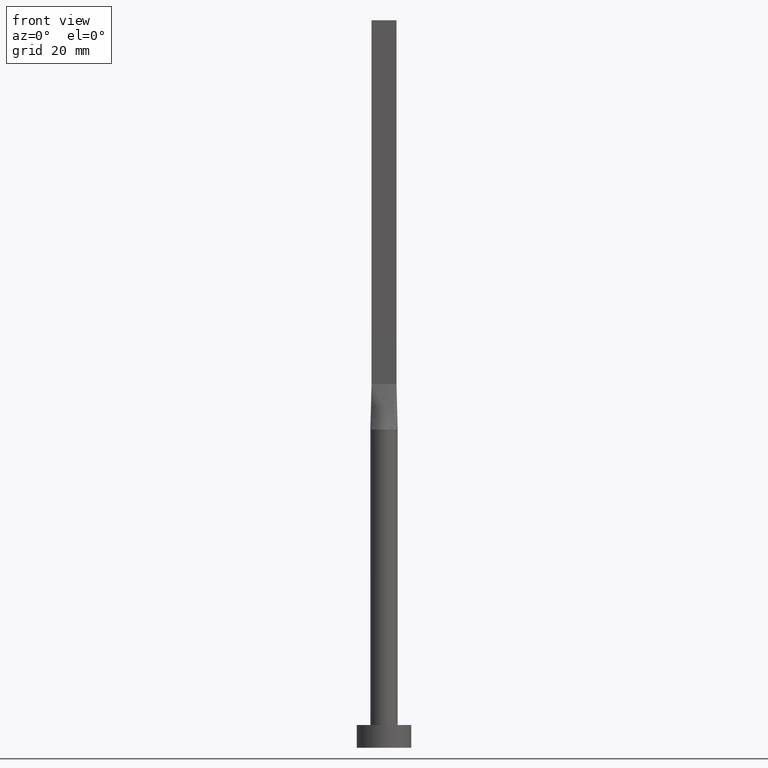
[diagram: clean part render]
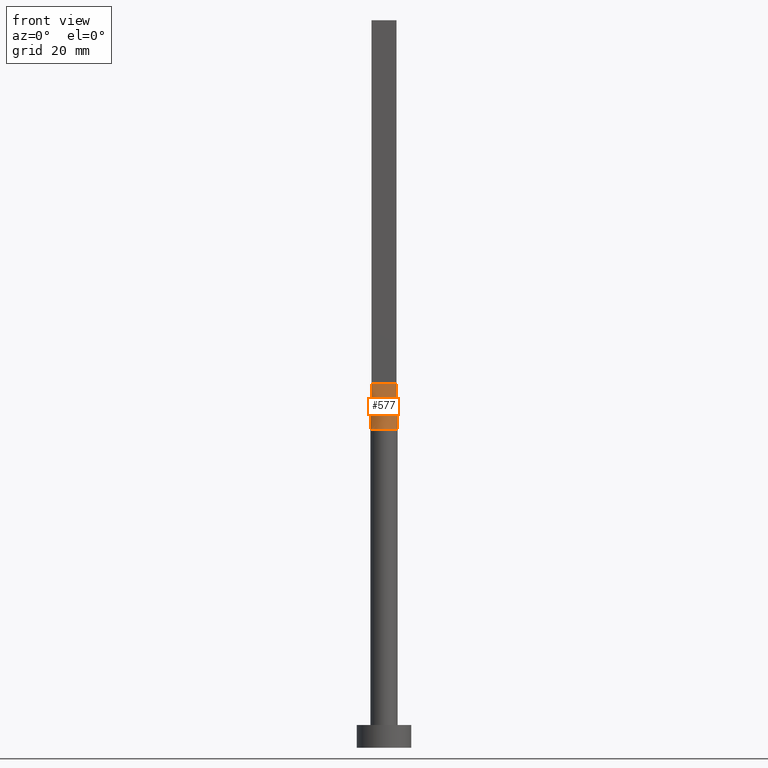
[diagram: same view with one face highlighted and labeled with its STEP entity id]
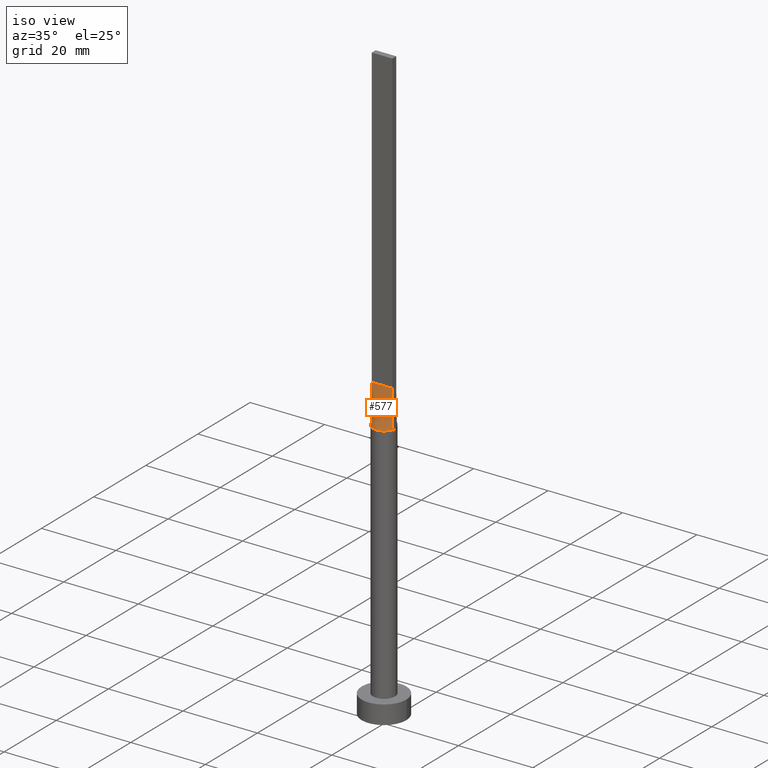
[diagram: same view with one face highlighted and labeled with its STEP entity id]
A machine part, front view. The second image highlights one B-rep face of the part: STEP entity #577.
A second angle (iso view) of the same face is appended — the face is thin or edge-on in the first view.
In plain terms, the highlighted face is a freeform B-spline surface patch.
Its self-contained STEP definition (entity closure, byte-faithful):
#4 = CARTESIAN_POINT ( 'NONE',  ( -2.442412046818594806, -1.765588549521968975, 69.99999999999998579 ) ) ;
#6 = CARTESIAN_POINT ( 'NONE',  ( -1.604166666666669183, -0.7499999999999995559, 79.99999999999998579 ) ) ;
#15 = CARTESIAN_POINT ( 'NONE',  ( 2.894291463713196677, -0.7893522173763275473, 70.00000000000000000 ) ) ;
#27 = CARTESIAN_POINT ( 'NONE',  ( -1.833333333333335258, -0.7499999999999995559, 79.99999999999998579 ) ) ;
#46 = CARTESIAN_POINT ( 'NONE',  ( 0.2291666666666632990, -0.7499999999999995559, 79.99999999999998579 ) ) ;
#47 = CARTESIAN_POINT ( 'NONE',  ( 0.4583333333333300397, -0.7499999999999995559, 79.99999999999998579 ) ) ;
#48 = CARTESIAN_POINT ( 'NONE',  ( -2.894489875237701959, -0.7894071376467488577, 70.00000000000000000 ) ) ;
#54 = DIRECTION ( 'NONE',  ( -0.01442753284129405511, -0.003934781683989273249, -0.9998881756422629552 ) ) ;
#58 = CIRCLE ( 'NONE', #347, 3.000000000000000444 ) ;
#71 = CARTESIAN_POINT ( 'NONE',  ( 2.894514141151844910, -0.7894138151126538494, 70.00000000000000000 ) ) ;
#81 = CARTESIAN_POINT ( 'NONE',  ( 2.830829925251657997, -1.022044525068636078, 70.00000000000001421 ) ) ;
#87 = CARTESIAN_POINT ( 'NONE',  ( 2.442412046818594362, -1.765588549521970751, 70.00000000000001421 ) ) ;
#92 = CARTESIAN_POINT ( 'NONE',  ( 2.291666666666665630, -0.7499999999999997780, 79.99999999999998579 ) ) ;
#102 = EDGE_CURVE ( 'NONE', #424, #345, #133, .T. ) ;
#113 = ORIENTED_EDGE ( 'NONE', *, *, #322, .F. ) ;
#116 = CARTESIAN_POINT ( 'NONE',  ( -2.830829925251658885, -1.022044525068633858, 70.00000000000001421 ) ) ;
#117 = ORIENTED_EDGE ( 'NONE', *, *, #237, .T. ) ;
#126 = CARTESIAN_POINT ( 'NONE',  ( -0.3818979204996094667, -3.000000000000000000, 70.00000000000000000 ) ) ;
#133 = LINE ( 'NONE', #458, #411 ) ;
#146 = B_SPLINE_SURFACE_WITH_KNOTS ( 'NONE', 3, 1, ( 
 ( #532, #578 ),
 ( #116, #288 ),
 ( #208, #226 ),
 ( #4, #27 ),
 ( #401, #6 ),
 ( #314, #538 ),
 ( #351, #301 ),
 ( #355, #461 ),
 ( #126, #174 ),
 ( #256, #46 ),
 ( #168, #47 ),
 ( #407, #211 ),
 ( #502, #169 ),
 ( #396, #405 ),
 ( #87, #452 ),
 ( #212, #92 ),
 ( #81, #494 ),
 ( #15, #497 ) ),
 .UNSPECIFIED., .F., .F., .F.,
 ( 4, 2, 2, 2, 2, 2, 2, 2, 4 ),
 ( 2, 2 ),
 ( 0.000000000000000000, 0.1250000000000000000, 0.2500000000000000000, 0.3750000000000000000, 0.5000000000000000000, 0.6250000000000000000, 0.7500000000000000000, 0.8750000000000000000, 1.000000000000000000 ),
 ( 0.000000000000000000, 1.000000000000000000 ),
 .UNSPECIFIED. ) ;
#150 = EDGE_LOOP ( 'NONE', ( #509, #117, #113, #344 ) ) ;
#168 = CARTESIAN_POINT ( 'NONE',  ( 0.7628506052746785171, -2.924692134573155577, 70.00000000000000000 ) ) ;
#169 = CARTESIAN_POINT ( 'NONE',  ( 1.145833333333330817, -0.7499999999999996669, 79.99999999999998579 ) ) ;
#174 = CARTESIAN_POINT ( 'NONE',  ( -0.2291666666666700158, -0.7499999999999995559, 80.00000000000000000 ) ) ;
#175 = CARTESIAN_POINT ( 'NONE',  ( 2.822145731856598339, -0.7696761086881637182, 75.00000000000001421 ) ) ;
#181 = VECTOR ( 'NONE', #213, 1000.000000000000114 ) ;
#200 = FACE_OUTER_BOUND ( 'NONE', #150, .T. ) ;
#208 = CARTESIAN_POINT ( 'NONE',  ( -2.733316749964668446, -1.269511353635829787, 69.99999999999998579 ) ) ;
#211 = CARTESIAN_POINT ( 'NONE',  ( 0.9166666666666637431, -0.7499999999999995559, 79.99999999999998579 ) ) ;
#212 = CARTESIAN_POINT ( 'NONE',  ( 2.733316749964666670, -1.269511353635832229, 69.99999999999998579 ) ) ;
#213 = DIRECTION ( 'NONE',  ( -0.01442753284129401174, 0.003934781683989412894, 0.9998881756422629552 ) ) ;
#226 = CARTESIAN_POINT ( 'NONE',  ( -2.291666666666667851, -0.7499999999999995559, 79.99999999999998579 ) ) ;
#236 = DIRECTION ( 'NONE',  ( 1.000000000000000000, 0.000000000000000000, 0.000000000000000000 ) ) ;
#237 = EDGE_CURVE ( 'NONE', #463, #501, #320, .T. ) ;
#256 = CARTESIAN_POINT ( 'NONE',  ( 0.3818979204996068022, -3.000000000000001332, 70.00000000000000000 ) ) ;
#288 = CARTESIAN_POINT ( 'NONE',  ( -2.520833333333333925, -0.7499999999999994449, 79.99999999999998579 ) ) ;
#301 = CARTESIAN_POINT ( 'NONE',  ( -0.9166666666666698493, -0.7499999999999995559, 79.99999999999998579 ) ) ;
#304 = DIRECTION ( 'NONE',  ( 1.000000000000000000, -5.913830031739115543E-17, 0.000000000000000000 ) ) ;
#314 = CARTESIAN_POINT ( 'NONE',  ( -1.751288851749022379, -2.458468820606022565, 69.99999999999998579 ) ) ;
#320 = LINE ( 'NONE', #175, #181 ) ;
#322 = EDGE_CURVE ( 'NONE', #424, #501, #352, .T. ) ;
#326 = VECTOR ( 'NONE', #304, 1000.000000000000000 ) ;
#344 = ORIENTED_EDGE ( 'NONE', *, *, #102, .T. ) ;
#345 = VERTEX_POINT ( 'NONE', #48 ) ;
#347 = AXIS2_PLACEMENT_3D ( 'NONE', #449, #469, #236 ) ;
#349 = EDGE_CURVE ( 'NONE', #345, #463, #58, .T. ) ;
#351 = CARTESIAN_POINT ( 'NONE',  ( -1.447928580458859749, -2.653161878569118226, 70.00000000000000000 ) ) ;
#352 = LINE ( 'NONE', #446, #326 ) ;
#355 = CARTESIAN_POINT ( 'NONE',  ( -0.7628506052746809596, -2.924692134573154245, 70.00000000000000000 ) ) ;
#388 = CARTESIAN_POINT ( 'NONE',  ( 2.750000000000000000, -0.7499999999999997780, 80.00000000000000000 ) ) ;
#396 = CARTESIAN_POINT ( 'NONE',  ( 2.248179627679384840, -2.014142483996542055, 69.99999999999998579 ) ) ;
#401 = CARTESIAN_POINT ( 'NONE',  ( -2.248179627679386616, -2.014142483996539390, 70.00000000000000000 ) ) ;
#405 = CARTESIAN_POINT ( 'NONE',  ( 1.604166666666664520, -0.7499999999999997780, 79.99999999999998579 ) ) ;
#407 = CARTESIAN_POINT ( 'NONE',  ( 1.447928580458857972, -2.653161878569119558, 69.99999999999998579 ) ) ;
#411 = VECTOR ( 'NONE', #54, 1000.000000000000114 ) ;
#424 = VERTEX_POINT ( 'NONE', #489 ) ;
#446 = CARTESIAN_POINT ( 'NONE',  ( -2.750000000000000000, -0.7499999999999994449, 80.00000000000000000 ) ) ;
#449 = CARTESIAN_POINT ( 'NONE',  ( 0.000000000000000000, 0.000000000000000000, 70.00000000000000000 ) ) ;
#452 = CARTESIAN_POINT ( 'NONE',  ( 1.833333333333331705, -0.7499999999999997780, 79.99999999999998579 ) ) ;
#458 = CARTESIAN_POINT ( 'NONE',  ( -2.822145731856598783, -0.7696761086881626079, 75.00000000000001421 ) ) ;
#461 = CARTESIAN_POINT ( 'NONE',  ( -0.4583333333333366455, -0.7499999999999995559, 79.99999999999998579 ) ) ;
#463 = VERTEX_POINT ( 'NONE', #71 ) ;
#469 = DIRECTION ( 'NONE',  ( 0.000000000000000000, 0.000000000000000000, 1.000000000000000000 ) ) ;
#489 = CARTESIAN_POINT ( 'NONE',  ( -2.750000000000000000, -0.7499999999999994449, 80.00000000000000000 ) ) ;
#494 = CARTESIAN_POINT ( 'NONE',  ( 2.520833333333333037, -0.7499999999999997780, 79.99999999999998579 ) ) ;
#497 = CARTESIAN_POINT ( 'NONE',  ( 2.750000000000000000, -0.7499999999999997780, 80.00000000000000000 ) ) ;
#501 = VERTEX_POINT ( 'NONE', #388 ) ;
#502 = CARTESIAN_POINT ( 'NONE',  ( 1.751288851749020603, -2.458468820606023897, 70.00000000000001421 ) ) ;
#509 = ORIENTED_EDGE ( 'NONE', *, *, #349, .T. ) ;
#532 = CARTESIAN_POINT ( 'NONE',  ( -2.894291463713197121, -0.7893522173763257710, 70.00000000000000000 ) ) ;
#538 = CARTESIAN_POINT ( 'NONE',  ( -1.145833333333336368, -0.7499999999999995559, 79.99999999999998579 ) ) ;
#577 = ADVANCED_FACE ( 'NONE', ( #200 ), #146, .T. ) ;
#578 = CARTESIAN_POINT ( 'NONE',  ( -2.750000000000000000, -0.7499999999999994449, 80.00000000000000000 ) ) ;